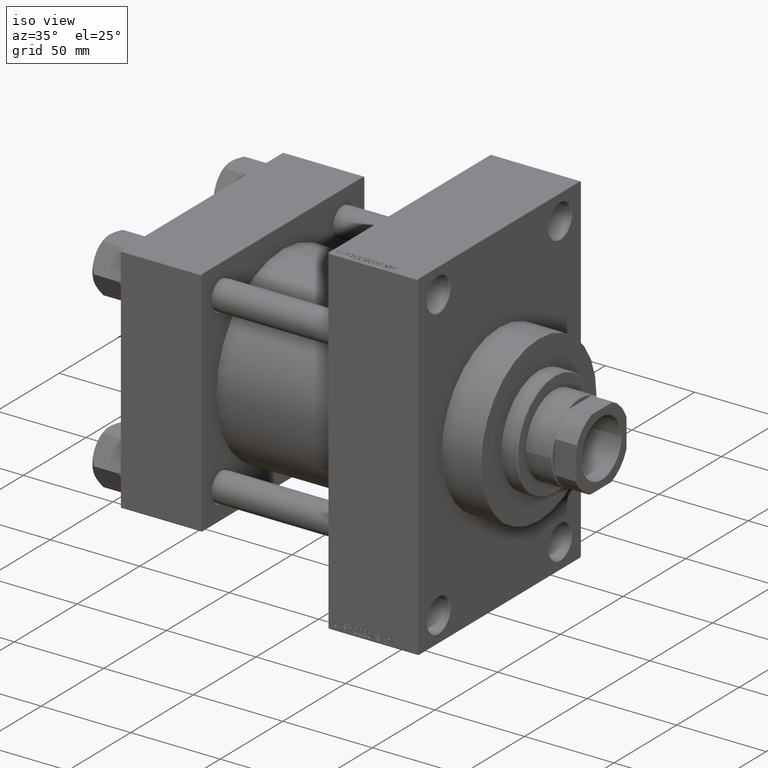
[diagram: clean part render]
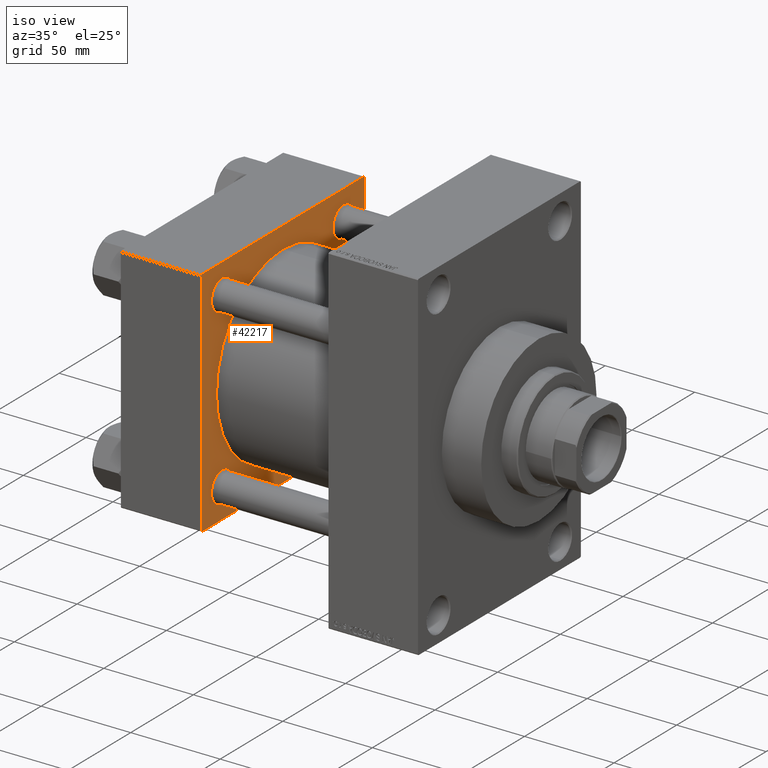
[diagram: same view with one face highlighted and labeled with its STEP entity id]
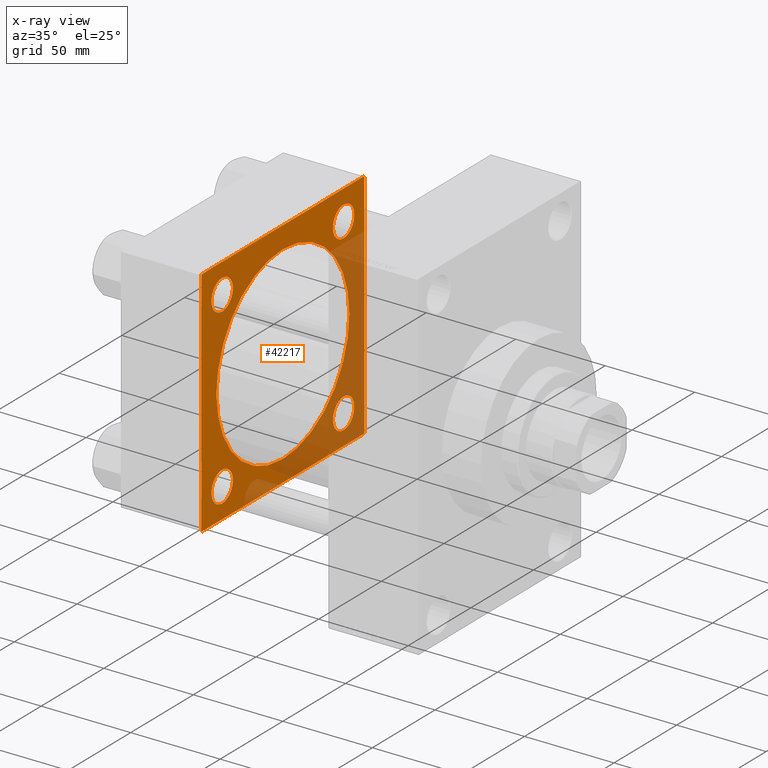
[diagram: x-ray of the same camera — body ghosted, the highlighted face saturated]
A machine part, iso view. The second image highlights one B-rep face of the part: STEP entity #42217.
The next image is the same camera in x-ray: the body ghosted, the highlighted face saturated — about 37% of this face is hidden behind the body in this view.
In plain terms, the highlighted planar face has unit normal (-1, 0, 0).
Its self-contained STEP definition (entity closure, byte-faithful):
#945 = CARTESIAN_POINT ( 'NONE',  ( 45.00000000000000000, 48.45000000000000995, 48.45000000000001705 ) ) ;
#975 = LINE ( 'NONE', #12755, #12442 ) ;
#1538 = CIRCLE ( 'NONE', #24653, 8.500000000000007105 ) ;
#1595 = DIRECTION ( 'NONE',  ( -0.000000000000000000, 0.7071067811865474617, 0.7071067811865474617 ) ) ;
#1650 = CARTESIAN_POINT ( 'NONE',  ( 45.00000000000000000, -65.00000000000000000, 64.50000000000000000 ) ) ;
#1794 = CARTESIAN_POINT ( 'NONE',  ( 45.00000000000000000, -64.49999999999994316, -65.00000000000000000 ) ) ;
#1913 = EDGE_CURVE ( 'NONE', #45786, #31150, #14185, .T. ) ;
#2130 = DIRECTION ( 'NONE',  ( 0.000000000000000000, 0.000000000000000000, 1.000000000000000000 ) ) ;
#2386 = ORIENTED_EDGE ( 'NONE', *, *, #9792, .T. ) ;
#2471 = DIRECTION ( 'NONE',  ( 0.000000000000000000, 0.000000000000000000, 1.000000000000000000 ) ) ;
#2576 = CARTESIAN_POINT ( 'NONE',  ( 45.00000000000000000, 48.45000000000000995, -56.95000000000002416 ) ) ;
#2862 = DIRECTION ( 'NONE',  ( 0.000000000000000000, 0.000000000000000000, -1.000000000000000000 ) ) ;
#3046 = ORIENTED_EDGE ( 'NONE', *, *, #18552, .T. ) ;
#3048 = FACE_BOUND ( 'NONE', #30801, .T. ) ;
#3614 = EDGE_LOOP ( 'NONE', ( #35919, #46081, #26819, #41870, #25627, #3046, #45435, #43059 ) ) ;
#3638 = VERTEX_POINT ( 'NONE', #14683 ) ;
#3808 = EDGE_CURVE ( 'NONE', #13716, #44112, #47370, .T. ) ;
#3934 = EDGE_CURVE ( 'NONE', #33744, #18603, #18731, .T. ) ;
#4096 = EDGE_CURVE ( 'NONE', #42194, #29750, #14330, .T. ) ;
#4945 = CIRCLE ( 'NONE', #31878, 8.500000000000007105 ) ;
#5054 = CARTESIAN_POINT ( 'NONE',  ( 45.00000000000000000, -2.602085213965210642E-15, 53.00000000000000711 ) ) ;
#5594 = CARTESIAN_POINT ( 'NONE',  ( 45.00000000000000000, -65.00000000000000000, -64.49999999999991473 ) ) ;
#6287 = EDGE_CURVE ( 'NONE', #24093, #21338, #22807, .T. ) ;
#6309 = DIRECTION ( 'NONE',  ( -1.000000000000000000, 0.000000000000000000, -0.000000000000000000 ) ) ;
#6520 = CARTESIAN_POINT ( 'NONE',  ( 45.00000000000000000, -48.44999999999999574, 56.95000000000003837 ) ) ;
#7029 = CIRCLE ( 'NONE', #37865, 8.500000000000007105 ) ;
#7091 = CARTESIAN_POINT ( 'NONE',  ( 45.00000000000000000, 65.00000000000000000, -64.49999999999995737 ) ) ;
#7099 = ORIENTED_EDGE ( 'NONE', *, *, #3808, .F. ) ;
#7622 = EDGE_CURVE ( 'NONE', #31150, #45786, #15041, .T. ) ;
#7738 = ORIENTED_EDGE ( 'NONE', *, *, #1913, .T. ) ;
#8156 = DIRECTION ( 'NONE',  ( 0.000000000000000000, -0.7071067811865474617, 0.7071067811865474617 ) ) ;
#8446 = CIRCLE ( 'NONE', #18458, 53.00000000000000711 ) ;
#8628 = CARTESIAN_POINT ( 'NONE',  ( 45.00000000000000000, 64.49999999999997158, 65.00000000000001421 ) ) ;
#9243 = EDGE_LOOP ( 'NONE', ( #18941, #7738 ) ) ;
#9369 = EDGE_CURVE ( 'NONE', #36959, #36924, #7029, .T. ) ;
#9555 = CARTESIAN_POINT ( 'NONE',  ( 45.00000000000000000, -48.44999999999999574, -48.45000000000003126 ) ) ;
#9590 = DIRECTION ( 'NONE',  ( 0.000000000000000000, 0.000000000000000000, 1.000000000000000000 ) ) ;
#9792 = EDGE_CURVE ( 'NONE', #36924, #36959, #45568, .T. ) ;
#9934 = CARTESIAN_POINT ( 'NONE',  ( 45.00000000000000000, 48.45000000000000995, 48.45000000000001705 ) ) ;
#9945 = EDGE_CURVE ( 'NONE', #30975, #29750, #975, .T. ) ;
#10137 = DIRECTION ( 'NONE',  ( 0.000000000000000000, 0.000000000000000000, 1.000000000000000000 ) ) ;
#10264 = FACE_BOUND ( 'NONE', #28702, .T. ) ;
#10511 = FACE_OUTER_BOUND ( 'NONE', #3614, .T. ) ;
#10863 = CARTESIAN_POINT ( 'NONE',  ( 45.00000000000000000, -2.602085213965210642E-15, 0.000000000000000000 ) ) ;
#10958 = DIRECTION ( 'NONE',  ( 0.000000000000000000, 0.000000000000000000, 1.000000000000000000 ) ) ;
#11562 = DIRECTION ( 'NONE',  ( -0.000000000000000000, -0.7071067811865672237, -0.7071067811865279218 ) ) ;
#11585 = CARTESIAN_POINT ( 'NONE',  ( 45.00000000000000000, 48.45000000000000995, 39.95000000000000284 ) ) ;
#12429 = LINE ( 'NONE', #19438, #27466 ) ;
#12442 = VECTOR ( 'NONE', #15659, 1000.000000000000000 ) ;
#12755 = CARTESIAN_POINT ( 'NONE',  ( 45.00000000000000000, -64.49999999999994316, -65.00000000000000000 ) ) ;
#12993 = CARTESIAN_POINT ( 'NONE',  ( 45.00000000000000000, 48.45000000000000995, -39.95000000000000284 ) ) ;
#13260 = ORIENTED_EDGE ( 'NONE', *, *, #27571, .T. ) ;
#13716 = VERTEX_POINT ( 'NONE', #5054 ) ;
#14050 = CARTESIAN_POINT ( 'NONE',  ( 45.00000000000000000, -48.44999999999999574, 48.45000000000003126 ) ) ;
#14185 = CIRCLE ( 'NONE', #41163, 8.500000000000007105 ) ;
#14243 = ORIENTED_EDGE ( 'NONE', *, *, #9369, .T. ) ;
#14330 = LINE ( 'NONE', #21332, #16647 ) ;
#14683 = CARTESIAN_POINT ( 'NONE',  ( 45.00000000000000000, -48.44999999999999574, -56.95000000000003837 ) ) ;
#15041 = CIRCLE ( 'NONE', #37409, 8.500000000000007105 ) ;
#15347 = DIRECTION ( 'NONE',  ( 0.000000000000000000, -1.000000000000000000, -1.067522139062650425E-16 ) ) ;
#15659 = DIRECTION ( 'NONE',  ( 0.000000000000000000, 0.7071067811865279218, -0.7071067811865671127 ) ) ;
#16554 = EDGE_LOOP ( 'NONE', ( #38406, #13260 ) ) ;
#16605 = VECTOR ( 'NONE', #15347, 1000.000000000000000 ) ;
#16647 = VECTOR ( 'NONE', #36035, 1000.000000000000000 ) ;
#17109 = EDGE_CURVE ( 'NONE', #38464, #35045, #4945, .T. ) ;
#17906 = DIRECTION ( 'NONE',  ( 0.000000000000000000, 0.000000000000000000, 1.000000000000000000 ) ) ;
#17983 = FACE_BOUND ( 'NONE', #16554, .T. ) ;
#18458 = AXIS2_PLACEMENT_3D ( 'NONE', #10863, #25588, #44626 ) ;
#18552 = EDGE_CURVE ( 'NONE', #18603, #18604, #22176, .T. ) ;
#18603 = VERTEX_POINT ( 'NONE', #19280 ) ;
#18604 = VERTEX_POINT ( 'NONE', #45779 ) ;
#18731 = LINE ( 'NONE', #19220, #16605 ) ;
#18941 = ORIENTED_EDGE ( 'NONE', *, *, #7622, .T. ) ;
#19220 = CARTESIAN_POINT ( 'NONE',  ( 45.00000000000000000, 65.00000000000000000, 65.00000000000001421 ) ) ;
#19280 = CARTESIAN_POINT ( 'NONE',  ( 45.00000000000000000, -64.49999999999997158, 65.00000000000000000 ) ) ;
#19438 = CARTESIAN_POINT ( 'NONE',  ( 45.00000000000000000, 65.00000000000000000, -64.49999999999995737 ) ) ;
#20909 = FACE_BOUND ( 'NONE', #9243, .T. ) ;
#21314 = VECTOR ( 'NONE', #8156, 1000.000000000000114 ) ;
#21332 = CARTESIAN_POINT ( 'NONE',  ( 45.00000000000000000, 65.00000000000000000, -64.99999999999998579 ) ) ;
#21338 = VERTEX_POINT ( 'NONE', #7091 ) ;
#21469 = DIRECTION ( 'NONE',  ( -1.000000000000000000, 0.000000000000000000, -0.000000000000000000 ) ) ;
#21812 = CARTESIAN_POINT ( 'NONE',  ( 45.00000000000000000, 48.45000000000000995, -48.45000000000001705 ) ) ;
#22176 = LINE ( 'NONE', #1650, #34268 ) ;
#22807 = LINE ( 'NONE', #37513, #25844 ) ;
#23359 = DIRECTION ( 'NONE',  ( -1.000000000000000000, 0.000000000000000000, -0.000000000000000000 ) ) ;
#23693 = EDGE_CURVE ( 'NONE', #24093, #33744, #37590, .T. ) ;
#23808 = DIRECTION ( 'NONE',  ( 0.000000000000000000, 0.000000000000000000, 1.000000000000000000 ) ) ;
#24093 = VERTEX_POINT ( 'NONE', #44647 ) ;
#24381 = ORIENTED_EDGE ( 'NONE', *, *, #33160, .F. ) ;
#24653 = AXIS2_PLACEMENT_3D ( 'NONE', #21812, #43277, #10958 ) ;
#25355 = AXIS2_PLACEMENT_3D ( 'NONE', #44448, #40836, #30212 ) ;
#25588 = DIRECTION ( 'NONE',  ( 1.000000000000000000, -0.000000000000000000, 0.000000000000000000 ) ) ;
#25627 = ORIENTED_EDGE ( 'NONE', *, *, #3934, .T. ) ;
#25844 = VECTOR ( 'NONE', #2862, 1000.000000000000000 ) ;
#26819 = ORIENTED_EDGE ( 'NONE', *, *, #6287, .F. ) ;
#27447 = CARTESIAN_POINT ( 'NONE',  ( 45.00000000000000000, 64.49999999999997158, -64.99999999999998579 ) ) ;
#27466 = VECTOR ( 'NONE', #1595, 1000.000000000000114 ) ;
#27571 = EDGE_CURVE ( 'NONE', #32918, #3638, #29819, .T. ) ;
#28166 = CARTESIAN_POINT ( 'NONE',  ( 45.00000000000000000, -2.602085213965210642E-15, 0.000000000000000000 ) ) ;
#28306 = DIRECTION ( 'NONE',  ( -1.000000000000000000, 0.000000000000000000, -0.000000000000000000 ) ) ;
#28500 = ORIENTED_EDGE ( 'NONE', *, *, #17109, .T. ) ;
#28702 = EDGE_LOOP ( 'NONE', ( #14243, #2386 ) ) ;
#29750 = VERTEX_POINT ( 'NONE', #1794 ) ;
#29819 = CIRCLE ( 'NONE', #40605, 8.500000000000007105 ) ;
#30212 = DIRECTION ( 'NONE',  ( 0.000000000000000000, 0.000000000000000000, 1.000000000000000000 ) ) ;
#30305 = LINE ( 'NONE', #47683, #36915 ) ;
#30510 = CARTESIAN_POINT ( 'NONE',  ( 45.00000000000000000, 64.49999999999997158, 65.00000000000001421 ) ) ;
#30801 = EDGE_LOOP ( 'NONE', ( #28500, #30967 ) ) ;
#30967 = ORIENTED_EDGE ( 'NONE', *, *, #34300, .T. ) ;
#30975 = VERTEX_POINT ( 'NONE', #5594 ) ;
#31150 = VERTEX_POINT ( 'NONE', #11585 ) ;
#31570 = EDGE_CURVE ( 'NONE', #18604, #30975, #30305, .T. ) ;
#31752 = CARTESIAN_POINT ( 'NONE',  ( 45.00000000000000000, 0.000000000000000000, 0.000000000000000000 ) ) ;
#31878 = AXIS2_PLACEMENT_3D ( 'NONE', #39829, #46839, #32587 ) ;
#32247 = CIRCLE ( 'NONE', #25355, 8.500000000000007105 ) ;
#32587 = DIRECTION ( 'NONE',  ( 0.000000000000000000, 0.000000000000000000, 1.000000000000000000 ) ) ;
#32740 = AXIS2_PLACEMENT_3D ( 'NONE', #28166, #42632, #9590 ) ;
#32918 = VERTEX_POINT ( 'NONE', #34777 ) ;
#33160 = EDGE_CURVE ( 'NONE', #44112, #13716, #8446, .T. ) ;
#33725 = AXIS2_PLACEMENT_3D ( 'NONE', #31752, #42849, #46701 ) ;
#33744 = VERTEX_POINT ( 'NONE', #30510 ) ;
#34002 = AXIS2_PLACEMENT_3D ( 'NONE', #43176, #21469, #10137 ) ;
#34268 = VECTOR ( 'NONE', #11562, 1000.000000000000000 ) ;
#34300 = EDGE_CURVE ( 'NONE', #35045, #38464, #1538, .T. ) ;
#34777 = CARTESIAN_POINT ( 'NONE',  ( 45.00000000000000000, -48.44999999999999574, -39.95000000000001705 ) ) ;
#35045 = VERTEX_POINT ( 'NONE', #12993 ) ;
#35919 = ORIENTED_EDGE ( 'NONE', *, *, #4096, .F. ) ;
#35956 = CARTESIAN_POINT ( 'NONE',  ( 45.00000000000000000, 48.45000000000000995, 56.95000000000002416 ) ) ;
#36035 = DIRECTION ( 'NONE',  ( 0.000000000000000000, -1.000000000000000000, -1.067522139062650425E-16 ) ) ;
#36881 = CARTESIAN_POINT ( 'NONE',  ( 45.00000000000000000, 3.888542821515762466E-15, -53.00000000000000711 ) ) ;
#36915 = VECTOR ( 'NONE', #44057, 1000.000000000000000 ) ;
#36924 = VERTEX_POINT ( 'NONE', #6520 ) ;
#36959 = VERTEX_POINT ( 'NONE', #39807 ) ;
#37409 = AXIS2_PLACEMENT_3D ( 'NONE', #9934, #6309, #2471 ) ;
#37513 = CARTESIAN_POINT ( 'NONE',  ( 45.00000000000000000, 65.00000000000000000, 65.00000000000001421 ) ) ;
#37590 = LINE ( 'NONE', #8628, #21314 ) ;
#37865 = AXIS2_PLACEMENT_3D ( 'NONE', #14050, #28306, #17906 ) ;
#38406 = ORIENTED_EDGE ( 'NONE', *, *, #45633, .T. ) ;
#38464 = VERTEX_POINT ( 'NONE', #2576 ) ;
#38981 = DIRECTION ( 'NONE',  ( -1.000000000000000000, 0.000000000000000000, -0.000000000000000000 ) ) ;
#38998 = PLANE ( 'NONE',  #33725 ) ;
#39380 = EDGE_CURVE ( 'NONE', #42194, #21338, #12429, .T. ) ;
#39807 = CARTESIAN_POINT ( 'NONE',  ( 45.00000000000000000, -48.44999999999999574, 39.95000000000001705 ) ) ;
#39829 = CARTESIAN_POINT ( 'NONE',  ( 45.00000000000000000, 48.45000000000000995, -48.45000000000001705 ) ) ;
#39939 = FACE_BOUND ( 'NONE', #41076, .T. ) ;
#40605 = AXIS2_PLACEMENT_3D ( 'NONE', #9555, #38981, #23808 ) ;
#40836 = DIRECTION ( 'NONE',  ( -1.000000000000000000, 0.000000000000000000, -0.000000000000000000 ) ) ;
#41076 = EDGE_LOOP ( 'NONE', ( #7099, #24381 ) ) ;
#41163 = AXIS2_PLACEMENT_3D ( 'NONE', #945, #23359, #2130 ) ;
#41870 = ORIENTED_EDGE ( 'NONE', *, *, #23693, .T. ) ;
#42194 = VERTEX_POINT ( 'NONE', #27447 ) ;
#42217 = ADVANCED_FACE ( 'NONE', ( #17983, #3048, #10264, #20909, #39939, #10511 ), #38998, .F. ) ;
#42632 = DIRECTION ( 'NONE',  ( 1.000000000000000000, -0.000000000000000000, 0.000000000000000000 ) ) ;
#42849 = DIRECTION ( 'NONE',  ( -1.000000000000000000, 0.000000000000000000, -0.000000000000000000 ) ) ;
#43059 = ORIENTED_EDGE ( 'NONE', *, *, #9945, .T. ) ;
#43176 = CARTESIAN_POINT ( 'NONE',  ( 45.00000000000000000, -48.44999999999999574, 48.45000000000003126 ) ) ;
#43277 = DIRECTION ( 'NONE',  ( -1.000000000000000000, 0.000000000000000000, -0.000000000000000000 ) ) ;
#44057 = DIRECTION ( 'NONE',  ( 0.000000000000000000, 0.000000000000000000, -1.000000000000000000 ) ) ;
#44112 = VERTEX_POINT ( 'NONE', #36881 ) ;
#44448 = CARTESIAN_POINT ( 'NONE',  ( 45.00000000000000000, -48.44999999999999574, -48.45000000000003126 ) ) ;
#44626 = DIRECTION ( 'NONE',  ( 0.000000000000000000, 0.000000000000000000, 1.000000000000000000 ) ) ;
#44647 = CARTESIAN_POINT ( 'NONE',  ( 45.00000000000000000, 65.00000000000000000, 64.49999999999998579 ) ) ;
#45435 = ORIENTED_EDGE ( 'NONE', *, *, #31570, .T. ) ;
#45568 = CIRCLE ( 'NONE', #34002, 8.500000000000007105 ) ;
#45633 = EDGE_CURVE ( 'NONE', #3638, #32918, #32247, .T. ) ;
#45779 = CARTESIAN_POINT ( 'NONE',  ( 45.00000000000000000, -65.00000000000000000, 64.50000000000000000 ) ) ;
#45786 = VERTEX_POINT ( 'NONE', #35956 ) ;
#46081 = ORIENTED_EDGE ( 'NONE', *, *, #39380, .T. ) ;
#46701 = DIRECTION ( 'NONE',  ( -0.000000000000000000, 0.000000000000000000, 1.000000000000000000 ) ) ;
#46839 = DIRECTION ( 'NONE',  ( -1.000000000000000000, 0.000000000000000000, -0.000000000000000000 ) ) ;
#47370 = CIRCLE ( 'NONE', #32740, 53.00000000000000711 ) ;
#47683 = CARTESIAN_POINT ( 'NONE',  ( 45.00000000000000000, -65.00000000000000000, 65.00000000000000000 ) ) ;